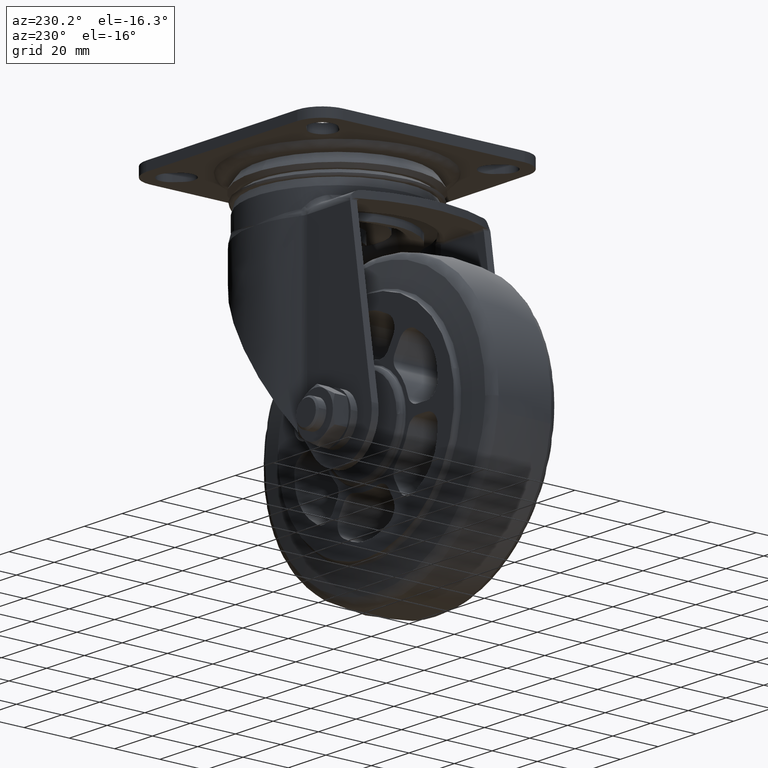
[diagram: clean part render]
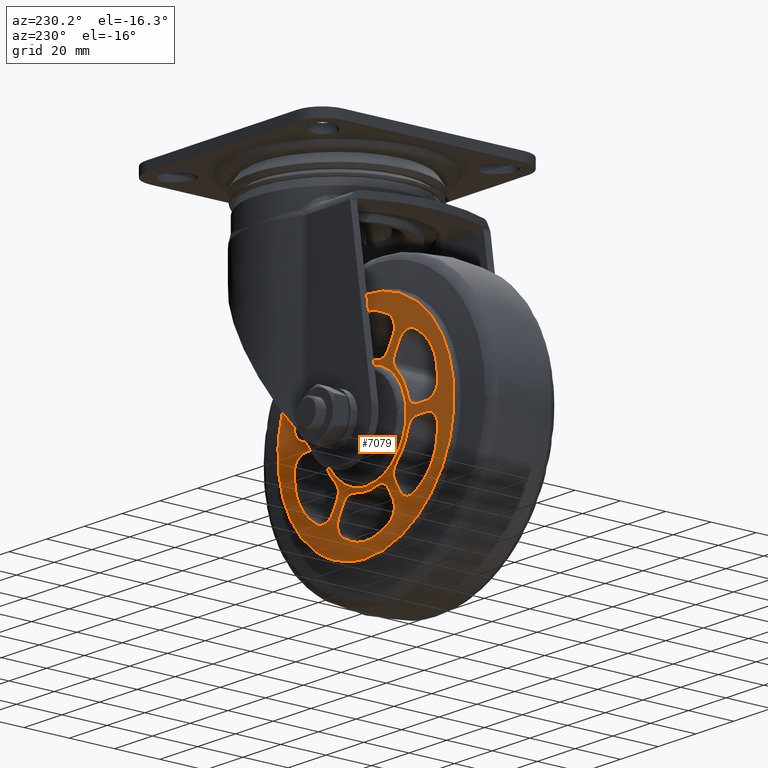
[diagram: same view with one face highlighted and labeled with its STEP entity id]
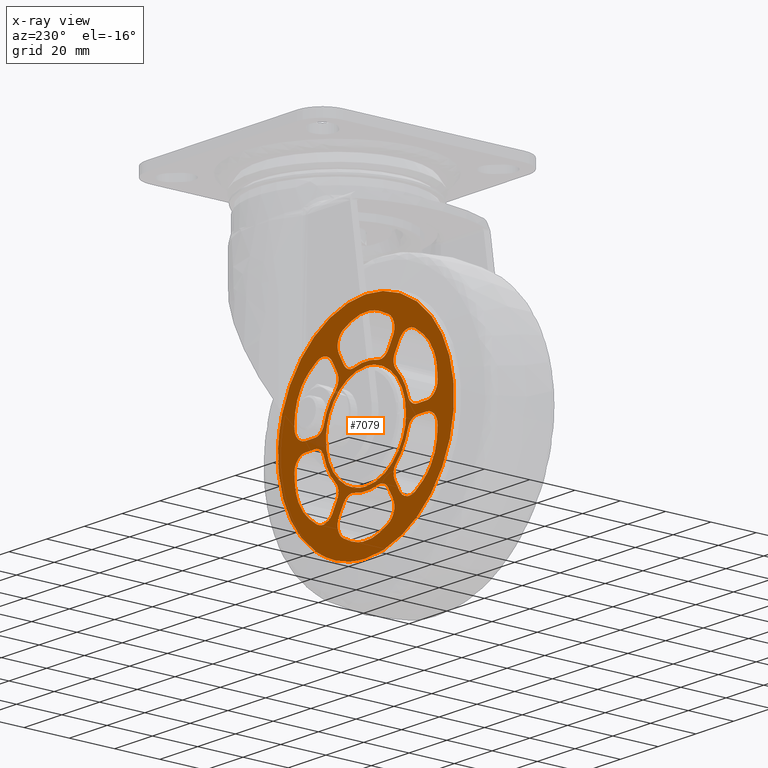
[diagram: x-ray of the same camera — body ghosted, the highlighted face saturated]
A machine part, auxiliary view. The second image highlights one B-rep face of the part: STEP entity #7079.
The next image is the same camera in x-ray: the body ghosted, the highlighted face saturated — about 2% of this face is hidden behind the body in this view.
In plain terms, the highlighted face is a freeform B-spline surface patch.
Its self-contained STEP definition (entity closure, byte-faithful):
#581=CARTESIAN_POINT('',(46.612899271979330,19.0,2.850914740496936));
#582=VERTEX_POINT('',#581);
#588=CARTESIAN_POINT('',(5.684342E-014,19.0,46.700000999999887));
#589=VERTEX_POINT('',#588);
#590=CARTESIAN_POINT('',(5.684342E-014,19.0,46.700000999999887));
#591=CARTESIAN_POINT('',(43.931023475244132,19.0,46.700000999999915));
#592=CARTESIAN_POINT('',(46.612899271979330,19.0,2.850914740496937));
#600=(BOUNDED_CURVE()B_SPLINE_CURVE(2,(#590,#591,#592),.UNSPECIFIED.,.F.,.U.)B_SPLINE_CURVE_WITH_KNOTS((3,3),(0.0,0.239333155162676),.UNSPECIFIED.)CURVE()GEOMETRIC_REPRESENTATION_ITEM()RATIONAL_B_SPLINE_CURVE((1.0,0.719603767262497,0.976072455139351))REPRESENTATION_ITEM(''));
#601=EDGE_CURVE('',#589,#582,#600,.T.);
#603=CARTESIAN_POINT('',(5.684342E-014,19.0,-46.700000999999887));
#604=VERTEX_POINT('',#603);
#605=CARTESIAN_POINT('',(5.684342E-014,19.0,-46.700000999999887));
#606=CARTESIAN_POINT('',(-46.700000999999858,18.999999999999993,-46.700000999999915));
#607=CARTESIAN_POINT('',(-46.700000999999837,19.0,0.0));
#608=CARTESIAN_POINT('',(-46.700000999999858,18.999999999999993,46.700000999999915));
#609=CARTESIAN_POINT('',(5.684342E-014,19.0,46.700000999999887));
#617=(BOUNDED_CURVE()B_SPLINE_CURVE(2,(#605,#606,#607,#608,#609),.UNSPECIFIED.,.F.,.U.)B_SPLINE_CURVE_WITH_KNOTS((3,2,3),(0.500000000000000,0.750000000000000,1.0),.UNSPECIFIED.)CURVE()GEOMETRIC_REPRESENTATION_ITEM()RATIONAL_B_SPLINE_CURVE((1.0,0.707106781186548,1.0,0.707106781186548,1.0))REPRESENTATION_ITEM(''));
#618=EDGE_CURVE('',#604,#589,#617,.T.);
#620=CARTESIAN_POINT('',(16.420526257996290,19.0,-43.717918646810837));
#621=VERTEX_POINT('',#620);
#622=CARTESIAN_POINT('',(16.420526257996297,19.000000000000011,-43.717918646810858));
#623=CARTESIAN_POINT('',(8.481046629523046,19.0,-46.700000999999894));
#624=CARTESIAN_POINT('',(5.684342E-014,19.0,-46.700000999999887));
#632=(BOUNDED_CURVE()B_SPLINE_CURVE(2,(#622,#623,#624),.UNSPECIFIED.,.F.,.U.)B_SPLINE_CURVE_WITH_KNOTS((3,3),(0.440284291923885,0.500000000000000),.UNSPECIFIED.)CURVE()GEOMETRIC_REPRESENTATION_ITEM()RATIONAL_B_SPLINE_CURVE((0.893499702741744,0.930038696191449,1.0))REPRESENTATION_ITEM(''));
#633=EDGE_CURVE('',#621,#604,#632,.T.);
#677=CARTESIAN_POINT('',(46.612899271979330,19.0,2.850914740496937));
#678=CARTESIAN_POINT('',(46.700000999999951,18.999999999999996,1.426787945119124));
#679=CARTESIAN_POINT('',(46.700000999999951,19.0,0.0));
#680=CARTESIAN_POINT('',(46.700000999999958,18.999999999999993,-32.344895285484000));
#681=CARTESIAN_POINT('',(16.420526257996297,19.000000000000011,-43.717918646810858));
#689=(BOUNDED_CURVE()B_SPLINE_CURVE(2,(#677,#678,#679,#680,#681),.UNSPECIFIED.,.F.,.U.)B_SPLINE_CURVE_WITH_KNOTS((3,2,3),(0.239333155162676,0.250000000000000,0.440284291923885),.UNSPECIFIED.)CURVE()GEOMETRIC_REPRESENTATION_ITEM()RATIONAL_B_SPLINE_CURVE((0.976072455139351,0.987503013924050,1.0,0.777068084995099,0.893499702741744))REPRESENTATION_ITEM(''));
#690=EDGE_CURVE('',#582,#621,#689,.T.);
#2684=CARTESIAN_POINT('',(21.198270542187220,19.0,1.481831594744568));
#2685=VERTEX_POINT('',#2684);
#2699=CARTESIAN_POINT('',(5.684342E-014,19.0,-21.250000000000000));
#2700=VERTEX_POINT('',#2699);
#2701=CARTESIAN_POINT('',(21.198270542187224,18.999999999999996,1.481831594744568));
#2702=CARTESIAN_POINT('',(21.250000000000060,19.000000000000004,0.741818712985195));
#2703=CARTESIAN_POINT('',(21.250000000000060,19.0,0.0));
#2704=CARTESIAN_POINT('',(21.250000000000064,18.999999999999996,-21.249999999999996));
#2705=CARTESIAN_POINT('',(5.684342E-014,19.0,-21.250000000000000));
#2713=(BOUNDED_CURVE()B_SPLINE_CURVE(2,(#2701,#2702,#2703,#2704,#2705),.UNSPECIFIED.,.F.,.U.)B_SPLINE_CURVE_WITH_KNOTS((3,2,3),(0.237833686524665,0.250000000000000,0.500000000000000),.UNSPECIFIED.)CURVE()GEOMETRIC_REPRESENTATION_ITEM()RATIONAL_B_SPLINE_CURVE((0.972879876364923,0.985746277140463,1.0,0.707106781186547,1.0))REPRESENTATION_ITEM(''));
#2714=EDGE_CURVE('',#2685,#2700,#2713,.T.);
#2716=CARTESIAN_POINT('',(-21.248322184327431,19.0,-0.267028347654822));
#2717=VERTEX_POINT('',#2716);
#2718=CARTESIAN_POINT('',(5.684342E-014,19.0,-21.250000000000000));
#2719=CARTESIAN_POINT('',(-20.984628510142315,19.0,-21.249999999999996));
#2720=CARTESIAN_POINT('',(-21.248322184327435,19.0,-0.267028347654822));
#2728=(BOUNDED_CURVE()B_SPLINE_CURVE(2,(#2718,#2719,#2720),.UNSPECIFIED.,.F.,.U.)B_SPLINE_CURVE_WITH_KNOTS((3,3),(0.500000000000000,0.747784295918476),.UNSPECIFIED.)CURVE()GEOMETRIC_REPRESENTATION_ITEM()RATIONAL_B_SPLINE_CURVE((1.0,0.709702639988050,0.994854295636527))REPRESENTATION_ITEM(''));
#2729=EDGE_CURVE('',#2700,#2717,#2728,.T.);
#2776=CARTESIAN_POINT('',(5.684342E-014,19.0,21.250000000000000));
#2777=VERTEX_POINT('',#2776);
#2778=CARTESIAN_POINT('',(-21.248322184327431,18.999999999999996,-0.267028347654822));
#2779=CARTESIAN_POINT('',(-21.249999999999947,18.999999999999996,-0.133519445024109));
#2780=CARTESIAN_POINT('',(-21.249999999999950,19.0,0.0));
#2781=CARTESIAN_POINT('',(-21.249999999999954,18.999999999999996,21.249999999999996));
#2782=CARTESIAN_POINT('',(5.684342E-014,19.0,21.250000000000000));
#2790=(BOUNDED_CURVE()B_SPLINE_CURVE(2,(#2778,#2779,#2780,#2781,#2782),.UNSPECIFIED.,.F.,.U.)B_SPLINE_CURVE_WITH_KNOTS((3,2,3),(0.747784295918477,0.750000000000000,1.0),.UNSPECIFIED.)CURVE()GEOMETRIC_REPRESENTATION_ITEM()RATIONAL_B_SPLINE_CURVE((0.994854295636529,0.997404141198498,1.0,0.707106781186547,1.0))REPRESENTATION_ITEM(''));
#2791=EDGE_CURVE('',#2717,#2777,#2790,.T.);
#2793=CARTESIAN_POINT('',(5.684342E-014,19.0,21.250000000000000));
#2794=CARTESIAN_POINT('',(19.816408003206483,18.999999999999996,21.249999999999993));
#2795=CARTESIAN_POINT('',(21.198270542187224,18.999999999999996,1.481831594744568));
#2803=(BOUNDED_CURVE()B_SPLINE_CURVE(2,(#2793,#2794,#2795),.UNSPECIFIED.,.F.,.U.)B_SPLINE_CURVE_WITH_KNOTS((3,3),(0.0,0.237833686524665),.UNSPECIFIED.)CURVE()GEOMETRIC_REPRESENTATION_ITEM()RATIONAL_B_SPLINE_CURVE((1.0,0.721360504046084,0.972879876364923))REPRESENTATION_ITEM(''));
#2804=EDGE_CURVE('',#2777,#2685,#2803,.T.);
#4004=CARTESIAN_POINT('',(-22.269653813184249,19.0,-5.750000015710111));
#4005=VERTEX_POINT('',#4004);
#4006=CARTESIAN_POINT('',(-27.110882999999848,19.0,-2.0));
#4007=VERTEX_POINT('',#4006);
#4008=CARTESIAN_POINT('',(-22.269653813184249,19.0,-5.750000015710111));
#4009=CARTESIAN_POINT('',(-23.237899640812163,19.0,-2.0));
#4010=CARTESIAN_POINT('',(-27.110882999999848,19.0,-2.0));
#4018=(BOUNDED_CURVE()B_SPLINE_CURVE(2,(#4008,#4009,#4010),.UNSPECIFIED.,.F.,.U.)CURVE()GEOMETRIC_REPRESENTATION_ITEM()QUASI_UNIFORM_CURVE()RATIONAL_B_SPLINE_CURVE((1.0,0.790569414048500,1.0))REPRESENTATION_ITEM(''));
#4019=EDGE_CURVE('',#4005,#4007,#4018,.T.);
#4056=CARTESIAN_POINT('',(-31.983204999999948,19.0,-2.0));
#4057=VERTEX_POINT('',#4056);
#4058=CARTESIAN_POINT('',(-31.983204999999948,19.0,-2.0));
#4059=CARTESIAN_POINT('',(-27.110882999999848,19.0,-2.0));
#4060=QUASI_UNIFORM_CURVE('',1,(#4058,#4059),.UNSPECIFIED.,.F.,.U.);
#4061=EDGE_CURVE('',#4057,#4007,#4060,.T.);
#4093=CARTESIAN_POINT('',(-37.979962896979799,19.0,-8.197234588049660));
#4094=VERTEX_POINT('',#4093);
#4095=CARTESIAN_POINT('',(-31.983204999999948,19.0,-2.0));
#4096=CARTESIAN_POINT('',(-34.526464151931883,19.0,-2.0));
#4097=CARTESIAN_POINT('',(-36.295014795041169,19.0,-3.827674953771385));
#4098=CARTESIAN_POINT('',(-38.063565438150462,19.0,-5.655349907542767));
#4099=CARTESIAN_POINT('',(-37.979962896979799,19.0,-8.197234588049660));
#4107=(BOUNDED_CURVE()B_SPLINE_CURVE(2,(#4095,#4096,#4097,#4098,#4099),.UNSPECIFIED.,.F.,.U.)B_SPLINE_CURVE_WITH_KNOTS((3,2,3),(0.0,0.500000000000000,1.0),.UNSPECIFIED.)CURVE()GEOMETRIC_REPRESENTATION_ITEM()RATIONAL_B_SPLINE_CURVE((1.0,0.920702858609869,1.0,0.920702858609869,1.0))REPRESENTATION_ITEM(''));
#4108=EDGE_CURVE('',#4057,#4094,#4107,.T.);
#4150=CARTESIAN_POINT('',(-37.552911390681103,19.0,-13.075622083258761));
#4151=VERTEX_POINT('',#4150);
#4152=CARTESIAN_POINT('',(-37.979962896979842,19.0,-8.197234588049676));
#4153=CARTESIAN_POINT('',(-37.899354442795897,19.0,-10.648063846935720));
#4154=CARTESIAN_POINT('',(-37.552911390681103,19.0,-13.075622083258761));
#4162=(BOUNDED_CURVE()B_SPLINE_CURVE(2,(#4152,#4153,#4154),.UNSPECIFIED.,.F.,.U.)CURVE()GEOMETRIC_REPRESENTATION_ITEM()QUASI_UNIFORM_CURVE()RATIONAL_B_SPLINE_CURVE((1.0,0.998518591757619,1.0))REPRESENTATION_ITEM(''));
#4163=EDGE_CURVE('',#4094,#4151,#4162,.T.);
#4203=CARTESIAN_POINT('',(-30.100276327109150,19.0,-25.983964036327901));
#4204=VERTEX_POINT('',#4203);
#4205=CARTESIAN_POINT('',(-37.552911390681089,19.0,-13.075622083258761));
#4206=CARTESIAN_POINT('',(-36.418277810399637,18.999999999999996,-21.026102559565054));
#4207=CARTESIAN_POINT('',(-30.100276327109150,19.0,-25.983964036327901));
#4215=(BOUNDED_CURVE()B_SPLINE_CURVE(2,(#4205,#4206,#4207),.UNSPECIFIED.,.F.,.U.)CURVE()GEOMETRIC_REPRESENTATION_ITEM()QUASI_UNIFORM_CURVE()RATIONAL_B_SPLINE_CURVE((1.0,0.927979302114498,1.0))REPRESENTATION_ITEM(''));
#4216=EDGE_CURVE('',#4151,#4204,#4215,.T.);
#4256=CARTESIAN_POINT('',(-26.088995190481249,19.0,-28.792994673231501));
#4257=VERTEX_POINT('',#4256);
#4258=CARTESIAN_POINT('',(-30.100276327109171,19.0,-25.983964036327929));
#4259=CARTESIAN_POINT('',(-28.171171099927378,19.0,-27.497771423771649));
#4260=CARTESIAN_POINT('',(-26.088995190481249,19.0,-28.792994673231501));
#4268=(BOUNDED_CURVE()B_SPLINE_CURVE(2,(#4258,#4259,#4260),.UNSPECIFIED.,.F.,.U.)CURVE()GEOMETRIC_REPRESENTATION_ITEM()QUASI_UNIFORM_CURVE()RATIONAL_B_SPLINE_CURVE((1.0,0.998518592248094,1.0))REPRESENTATION_ITEM(''));
#4269=EDGE_CURVE('',#4204,#4257,#4268,.T.);
#4309=CARTESIAN_POINT('',(-17.723654087481101,19.0,-26.698268151521798));
#4310=VERTEX_POINT('',#4309);
#4311=CARTESIAN_POINT('',(-26.088995190481249,19.0,-28.792994673231501));
#4312=CARTESIAN_POINT('',(-23.929460136711569,19.000000000000007,-30.136339584123721));
#4313=CARTESIAN_POINT('',(-21.462371816608350,19.0,-29.518567442561501));
#4314=CARTESIAN_POINT('',(-18.995283496505131,19.000000000000007,-28.900795300999281));
#4315=CARTESIAN_POINT('',(-17.723654087481101,19.0,-26.698268151521798));
#4323=(BOUNDED_CURVE()B_SPLINE_CURVE(2,(#4311,#4312,#4313,#4314,#4315),.UNSPECIFIED.,.F.,.U.)B_SPLINE_CURVE_WITH_KNOTS((3,2,3),(0.0,0.500000000000000,1.0),.UNSPECIFIED.)CURVE()GEOMETRIC_REPRESENTATION_ITEM()RATIONAL_B_SPLINE_CURVE((1.0,0.920702857697207,1.0,0.920702857697207,1.0))REPRESENTATION_ITEM(''));
#4324=EDGE_CURVE('',#4257,#4310,#4323,.T.);
#4357=CARTESIAN_POINT('',(-15.287492981077749,19.0,-22.478713999999901));
#4358=VERTEX_POINT('',#4357);
#4359=CARTESIAN_POINT('',(-15.287492981077749,19.0,-22.478713999999901));
#4360=CARTESIAN_POINT('',(-17.723654087481101,19.0,-26.698268151521798));
#4361=QUASI_UNIFORM_CURVE('',1,(#4359,#4360),.UNSPECIFIED.,.F.,.U.);
#4362=EDGE_CURVE('',#4358,#4310,#4361,.T.);
#4394=CARTESIAN_POINT('',(-16.114473665466999,19.0,-16.411086530819802));
#4395=VERTEX_POINT('',#4394);
#4396=CARTESIAN_POINT('',(-15.287492981077790,19.0,-22.478713999999879));
#4397=CARTESIAN_POINT('',(-13.351001301483965,18.999999999999996,-19.124612022508934));
#4398=CARTESIAN_POINT('',(-16.114473665467031,19.0,-16.411086530819830));
#4406=(BOUNDED_CURVE()B_SPLINE_CURVE(2,(#4396,#4397,#4398),.UNSPECIFIED.,.F.,.U.)CURVE()GEOMETRIC_REPRESENTATION_ITEM()QUASI_UNIFORM_CURVE()RATIONAL_B_SPLINE_CURVE((1.0,0.790569414048500,1.0))REPRESENTATION_ITEM(''));
#4407=EDGE_CURVE('',#4358,#4395,#4406,.T.);
#4447=CARTESIAN_POINT('',(-22.269653813184249,19.0,-5.750000015710111));
#4448=CARTESIAN_POINT('',(-20.672607460456735,19.000000000000004,-11.935335447328825));
#4449=CARTESIAN_POINT('',(-16.114473665466999,19.0,-16.411086530819802));
#4457=(BOUNDED_CURVE()B_SPLINE_CURVE(2,(#4447,#4448,#4449),.UNSPECIFIED.,.F.,.U.)CURVE()GEOMETRIC_REPRESENTATION_ITEM()QUASI_UNIFORM_CURVE()RATIONAL_B_SPLINE_CURVE((1.0,0.963525493321026,1.0))REPRESENTATION_ITEM(''));
#4458=EDGE_CURVE('',#4005,#4395,#4457,.T.);
#4483=CARTESIAN_POINT('',(14.259551422706700,19.0,-28.698267999999999));
#4484=VERTEX_POINT('',#4483);
#4485=CARTESIAN_POINT('',(11.823391000000059,19.0,-24.478714000000000));
#4486=VERTEX_POINT('',#4485);
#4487=CARTESIAN_POINT('',(14.259551422706700,19.0,-28.698267999999999));
#4488=CARTESIAN_POINT('',(11.823391000000059,19.0,-24.478714000000000));
#4489=QUASI_UNIFORM_CURVE('',1,(#4487,#4488),.UNSPECIFIED.,.F.,.U.);
#4490=EDGE_CURVE('',#4484,#4486,#4489,.T.);
#4528=CARTESIAN_POINT('',(11.890967968369839,19.0,-36.990229637287150));
#4529=VERTEX_POINT('',#4528);
#4530=CARTESIAN_POINT('',(11.890967968369839,19.0,-36.990229637287150));
#4531=CARTESIAN_POINT('',(14.134105897311770,18.999999999999996,-35.791689331238253));
#4532=CARTESIAN_POINT('',(14.832643424380549,19.0,-33.346242141712757));
#4533=CARTESIAN_POINT('',(15.531180951449338,18.999999999999996,-30.900794952187265));
#4534=CARTESIAN_POINT('',(14.259551422706650,19.0,-28.698268000000031));
#4542=(BOUNDED_CURVE()B_SPLINE_CURVE(2,(#4530,#4531,#4532,#4533,#4534),.UNSPECIFIED.,.F.,.U.)B_SPLINE_CURVE_WITH_KNOTS((3,2,3),(0.0,0.500000000000000,1.0),.UNSPECIFIED.)CURVE()GEOMETRIC_REPRESENTATION_ITEM()RATIONAL_B_SPLINE_CURVE((1.0,0.920702863817409,1.0,0.920702863817409,1.0))REPRESENTATION_ITEM(''));
#4543=EDGE_CURVE('',#4529,#4484,#4542,.T.);
#4585=CARTESIAN_POINT('',(7.452634689744221,19.0,-39.059586099404846));
#4586=VERTEX_POINT('',#4585);
#4587=CARTESIAN_POINT('',(7.452634689744221,19.0,-39.059586099404846));
#4588=CARTESIAN_POINT('',(9.728183304794781,19.000000000000004,-38.145835317923968));
#4589=CARTESIAN_POINT('',(11.890967968369830,19.0,-36.990229637287143));
#4597=(BOUNDED_CURVE()B_SPLINE_CURVE(2,(#4587,#4588,#4589),.UNSPECIFIED.,.F.,.U.)CURVE()GEOMETRIC_REPRESENTATION_ITEM()QUASI_UNIFORM_CURVE()RATIONAL_B_SPLINE_CURVE((1.0,0.998518591705747,1.0))REPRESENTATION_ITEM(''));
#4598=EDGE_CURVE('',#4586,#4529,#4597,.T.);
#4638=CARTESIAN_POINT('',(-7.452635051924220,19.0,-39.059585723660952));
#4639=VERTEX_POINT('',#4638);
#4640=CARTESIAN_POINT('',(-7.452635051924220,19.0,-39.059585723660952));
#4641=CARTESIAN_POINT('',(-0.000000256530320,19.000000000000007,-42.052204869733274));
#4642=CARTESIAN_POINT('',(7.452634689744216,19.0,-39.059586099404861));
#4650=(BOUNDED_CURVE()B_SPLINE_CURVE(2,(#4640,#4641,#4642),.UNSPECIFIED.,.F.,.U.)CURVE()GEOMETRIC_REPRESENTATION_ITEM()QUASI_UNIFORM_CURVE()RATIONAL_B_SPLINE_CURVE((1.0,0.927979300534903,1.0))REPRESENTATION_ITEM(''));
#4651=EDGE_CURVE('',#4639,#4586,#4650,.T.);
#4691=CARTESIAN_POINT('',(-11.890967129116101,19.0,-36.990229684971553));
#4692=VERTEX_POINT('',#4691);
#4693=CARTESIAN_POINT('',(-11.890967129116101,19.0,-36.990229684971553));
#4694=CARTESIAN_POINT('',(-9.728183160450769,19.000000000000004,-38.145835347927559));
#4695=CARTESIAN_POINT('',(-7.452635051924207,19.0,-39.059585723660923));
#4703=(BOUNDED_CURVE()B_SPLINE_CURVE(2,(#4693,#4694,#4695),.UNSPECIFIED.,.F.,.U.)CURVE()GEOMETRIC_REPRESENTATION_ITEM()QUASI_UNIFORM_CURVE()RATIONAL_B_SPLINE_CURVE((1.0,0.998518592454691,1.0))REPRESENTATION_ITEM(''));
#4704=EDGE_CURVE('',#4692,#4639,#4703,.T.);
#4744=CARTESIAN_POINT('',(-14.259551999999919,19.0,-28.698267999999999));
#4745=VERTEX_POINT('',#4744);
#4746=CARTESIAN_POINT('',(-14.259551999999919,19.0,-28.698267999999999));
#4747=CARTESIAN_POINT('',(-15.531181059715630,19.000000000000004,-30.900795384411023));
#4748=CARTESIAN_POINT('',(-14.832643279999481,19.0,-33.346242647163372));
#4749=CARTESIAN_POINT('',(-14.134105500283333,19.000000000000004,-35.791689909915718));
#4750=CARTESIAN_POINT('',(-11.890967129116101,19.0,-36.990229684971553));
#4758=(BOUNDED_CURVE()B_SPLINE_CURVE(2,(#4746,#4747,#4748,#4749,#4750),.UNSPECIFIED.,.F.,.U.)B_SPLINE_CURVE_WITH_KNOTS((3,2,3),(0.0,0.500000000000000,1.0),.UNSPECIFIED.)CURVE()GEOMETRIC_REPRESENTATION_ITEM()RATIONAL_B_SPLINE_CURVE((1.0,0.920702856109011,1.0,0.920702856109011,1.0))REPRESENTATION_ITEM(''));
#4759=EDGE_CURVE('',#4745,#4692,#4758,.T.);
#4792=CARTESIAN_POINT('',(-11.823391018922139,19.0,-24.478713999999901));
#4793=VERTEX_POINT('',#4792);
#4794=CARTESIAN_POINT('',(-11.823391018922139,19.0,-24.478713999999901));
#4795=CARTESIAN_POINT('',(-14.259551999999919,19.0,-28.698267999999999));
#4796=QUASI_UNIFORM_CURVE('',1,(#4794,#4795),.UNSPECIFIED.,.F.,.U.);
#4797=EDGE_CURVE('',#4793,#4745,#4796,.T.);
#4829=CARTESIAN_POINT('',(-6.155181120500460,19.0,-22.161086285961549));
#4830=VERTEX_POINT('',#4829);
#4831=CARTESIAN_POINT('',(-6.155181120500460,19.0,-22.161086285961549));
#4832=CARTESIAN_POINT('',(-9.886899356731618,19.000000000000007,-21.124612052652363));
#4833=CARTESIAN_POINT('',(-11.823391018922180,19.0,-24.478713999999879));
#4841=(BOUNDED_CURVE()B_SPLINE_CURVE(2,(#4831,#4832,#4833),.UNSPECIFIED.,.F.,.U.)CURVE()GEOMETRIC_REPRESENTATION_ITEM()QUASI_UNIFORM_CURVE()RATIONAL_B_SPLINE_CURVE((1.0,0.790569416712825,1.0))REPRESENTATION_ITEM(''));
#4842=EDGE_CURVE('',#4830,#4793,#4841,.T.);
#4882=CARTESIAN_POINT('',(6.155181120500490,19.0,-22.161086285961598));
#4883=VERTEX_POINT('',#4882);
#4884=CARTESIAN_POINT('',(-6.155181120500468,19.0,-22.161086285961570));
#4885=CARTESIAN_POINT('',(9.138523E-015,18.999999999999996,-23.870671011966888));
#4886=CARTESIAN_POINT('',(6.155181120500489,19.0,-22.161086285961598));
#4894=(BOUNDED_CURVE()B_SPLINE_CURVE(2,(#4884,#4885,#4886),.UNSPECIFIED.,.F.,.U.)CURVE()GEOMETRIC_REPRESENTATION_ITEM()QUASI_UNIFORM_CURVE()RATIONAL_B_SPLINE_CURVE((1.0,0.963525490693982,1.0))REPRESENTATION_ITEM(''));
#4895=EDGE_CURVE('',#4830,#4883,#4894,.T.);
#4935=CARTESIAN_POINT('',(11.823391000000059,19.0,-24.478714000000000));
#4936=CARTESIAN_POINT('',(9.886899349438931,19.000000000000004,-21.124612054677897));
#4937=CARTESIAN_POINT('',(6.155181120500490,19.0,-22.161086285961598));
#4945=(BOUNDED_CURVE()B_SPLINE_CURVE(2,(#4935,#4936,#4937),.UNSPECIFIED.,.F.,.U.)CURVE()GEOMETRIC_REPRESENTATION_ITEM()QUASI_UNIFORM_CURVE()RATIONAL_B_SPLINE_CURVE((1.0,0.790569417292189,1.0))REPRESENTATION_ITEM(''));
#4946=EDGE_CURVE('',#4486,#4883,#4945,.T.);
#4971=CARTESIAN_POINT('',(27.110883000000051,19.0,-1.999999999999945));
#4972=VERTEX_POINT('',#4971);
#4973=CARTESIAN_POINT('',(31.983205000000051,19.0,-1.999999999999945));
#4974=VERTEX_POINT('',#4973);
#4975=CARTESIAN_POINT('',(27.110883000000051,19.0,-1.999999999999945));
#4976=CARTESIAN_POINT('',(31.983205000000051,19.0,-1.999999999999945));
#4977=QUASI_UNIFORM_CURVE('',1,(#4975,#4976),.UNSPECIFIED.,.F.,.U.);
#4978=EDGE_CURVE('',#4972,#4974,#4977,.T.);
#5016=CARTESIAN_POINT('',(37.979962317359814,19.0,-8.197235079771060));
#5017=VERTEX_POINT('',#5016);
#5018=CARTESIAN_POINT('',(37.979962317359799,19.0,-8.197235079771064));
#5019=CARTESIAN_POINT('',(38.063565642593993,19.000000000000004,-5.655350274412518));
#5020=CARTESIAN_POINT('',(36.295014972542120,19.0,-3.827675137206259));
#5021=CARTESIAN_POINT('',(34.526464302490233,19.000000000000004,-2.000000000000000));
#5022=CARTESIAN_POINT('',(31.983205000000051,19.0,-2.0));
#5030=(BOUNDED_CURVE()B_SPLINE_CURVE(2,(#5018,#5019,#5020,#5021,#5022),.UNSPECIFIED.,.F.,.U.)B_SPLINE_CURVE_WITH_KNOTS((3,2,3),(0.0,0.500000000000000,1.0),.UNSPECIFIED.)CURVE()GEOMETRIC_REPRESENTATION_ITEM()RATIONAL_B_SPLINE_CURVE((1.0,0.920702850308472,1.0,0.920702850308472,1.0))REPRESENTATION_ITEM(''));
#5031=EDGE_CURVE('',#5017,#4974,#5030,.T.);
#5073=CARTESIAN_POINT('',(37.552911279774897,19.0,-13.075622382842241));
#5074=VERTEX_POINT('',#5073);
#5075=CARTESIAN_POINT('',(37.552911279774897,19.0,-13.075622382842250));
#5076=CARTESIAN_POINT('',(37.899354401478881,19.0,-10.648064256883123));
#5077=CARTESIAN_POINT('',(37.979962317359814,19.0,-8.197235079771060));
#5085=(BOUNDED_CURVE()B_SPLINE_CURVE(2,(#5075,#5076,#5077),.UNSPECIFIED.,.F.,.U.)CURVE()GEOMETRIC_REPRESENTATION_ITEM()QUASI_UNIFORM_CURVE()RATIONAL_B_SPLINE_CURVE((1.0,0.998518591877483,1.0))REPRESENTATION_ITEM(''));
#5086=EDGE_CURVE('',#5074,#5017,#5085,.T.);
#5126=CARTESIAN_POINT('',(30.100276893866951,19.0,-25.983963864750152));
#5127=VERTEX_POINT('',#5126);
#5128=CARTESIAN_POINT('',(30.100276893866980,19.0,-25.983963864750191));
#5129=CARTESIAN_POINT('',(36.418277713037035,18.999999999999996,-21.026102354320059));
#5130=CARTESIAN_POINT('',(37.552911279774897,19.0,-13.075622382842241));
#5138=(BOUNDED_CURVE()B_SPLINE_CURVE(2,(#5128,#5129,#5130),.UNSPECIFIED.,.F.,.U.)CURVE()GEOMETRIC_REPRESENTATION_ITEM()QUASI_UNIFORM_CURVE()RATIONAL_B_SPLINE_CURVE((1.0,0.927979310163679,1.0))REPRESENTATION_ITEM(''));
#5139=EDGE_CURVE('',#5127,#5074,#5138,.T.);
#5179=CARTESIAN_POINT('',(26.088995341053050,19.0,-28.792994792674701));
#5180=VERTEX_POINT('',#5179);
#5181=CARTESIAN_POINT('',(26.088995341053089,19.0,-28.792994792674769));
#5182=CARTESIAN_POINT('',(28.171171360441285,19.000000000000007,-27.497771257562110));
#5183=CARTESIAN_POINT('',(30.100276893866951,19.0,-25.983963864750152));
#5191=(BOUNDED_CURVE()B_SPLINE_CURVE(2,(#5181,#5182,#5183),.UNSPECIFIED.,.F.,.U.)CURVE()GEOMETRIC_REPRESENTATION_ITEM()QUASI_UNIFORM_CURVE()RATIONAL_B_SPLINE_CURVE((1.0,0.998518591953652,1.0))REPRESENTATION_ITEM(''));
#5192=EDGE_CURVE('',#5180,#5127,#5191,.T.);
#5232=CARTESIAN_POINT('',(17.723653770451151,19.0,-26.698268334559000));
#5233=VERTEX_POINT('',#5232);
#5234=CARTESIAN_POINT('',(17.723653770451161,19.0,-26.698268334559000));
#5235=CARTESIAN_POINT('',(18.995283506055120,19.000000000000004,-28.900795317540318));
#5236=CARTESIAN_POINT('',(21.462371848020481,19.0,-29.518567450427241));
#5237=CARTESIAN_POINT('',(23.929460189985836,19.000000000000004,-30.136339583314157));
#5238=CARTESIAN_POINT('',(26.088995341053050,19.0,-28.792994792674701));
#5246=(BOUNDED_CURVE()B_SPLINE_CURVE(2,(#5234,#5235,#5236,#5237,#5238),.UNSPECIFIED.,.F.,.U.)B_SPLINE_CURVE_WITH_KNOTS((3,2,3),(0.0,0.500000000000000,1.0),.UNSPECIFIED.)CURVE()GEOMETRIC_REPRESENTATION_ITEM()RATIONAL_B_SPLINE_CURVE((1.0,0.920702856644077,1.0,0.920702856644077,1.0))REPRESENTATION_ITEM(''));
#5247=EDGE_CURVE('',#5233,#5180,#5246,.T.);
#5280=CARTESIAN_POINT('',(15.287493156234349,19.0,-22.478714270605550));
#5281=VERTEX_POINT('',#5280);
#5282=CARTESIAN_POINT('',(17.723653770451151,19.0,-26.698268334559000));
#5283=CARTESIAN_POINT('',(15.287493156234349,19.0,-22.478714270605550));
#5284=QUASI_UNIFORM_CURVE('',1,(#5282,#5283),.UNSPECIFIED.,.F.,.U.);
#5285=EDGE_CURVE('',#5233,#5281,#5284,.T.);
#5317=CARTESIAN_POINT('',(16.114473632997850,19.0,-16.411086562702351));
#5318=VERTEX_POINT('',#5317);
#5319=CARTESIAN_POINT('',(16.114473632997850,19.0,-16.411086562702351));
#5320=CARTESIAN_POINT('',(13.351001135922111,19.0,-19.124612234478700));
#5321=CARTESIAN_POINT('',(15.287493156234349,19.0,-22.478714270605550));
#5329=(BOUNDED_CURVE()B_SPLINE_CURVE(2,(#5319,#5320,#5321),.UNSPECIFIED.,.F.,.U.)CURVE()GEOMETRIC_REPRESENTATION_ITEM()QUASI_UNIFORM_CURVE()RATIONAL_B_SPLINE_CURVE((1.0,0.790569397121040,1.0))REPRESENTATION_ITEM(''));
#5330=EDGE_CURVE('',#5318,#5281,#5329,.T.);
#5370=CARTESIAN_POINT('',(22.269654218953001,19.0,-5.750000084197589));
#5371=VERTEX_POINT('',#5370);
#5372=CARTESIAN_POINT('',(16.114473632997850,19.0,-16.411086562702351));
#5373=CARTESIAN_POINT('',(20.672607467829568,19.000000000000004,-11.935335457802850));
#5374=CARTESIAN_POINT('',(22.269654218952979,19.0,-5.750000084197584));
#5382=(BOUNDED_CURVE()B_SPLINE_CURVE(2,(#5372,#5373,#5374),.UNSPECIFIED.,.F.,.U.)CURVE()GEOMETRIC_REPRESENTATION_ITEM()QUASI_UNIFORM_CURVE()RATIONAL_B_SPLINE_CURVE((1.0,0.963525492851912,1.0))REPRESENTATION_ITEM(''));
#5383=EDGE_CURVE('',#5318,#5371,#5382,.T.);
#5423=CARTESIAN_POINT('',(27.110883000000051,19.0,-2.0));
#5424=CARTESIAN_POINT('',(23.237899668915905,19.000000000000004,-2.000000000000000));
#5425=CARTESIAN_POINT('',(22.269654218953001,19.0,-5.750000084197589));
#5433=(BOUNDED_CURVE()B_SPLINE_CURVE(2,(#5423,#5424,#5425),.UNSPECIFIED.,.F.,.U.)CURVE()GEOMETRIC_REPRESENTATION_ITEM()QUASI_UNIFORM_CURVE()RATIONAL_B_SPLINE_CURVE((1.0,0.790569416199729,1.0))REPRESENTATION_ITEM(''));
#5434=EDGE_CURVE('',#4972,#5371,#5433,.T.);
#5459=CARTESIAN_POINT('',(17.723653770451151,19.0,26.698268334559000));
#5460=VERTEX_POINT('',#5459);
#5461=CARTESIAN_POINT('',(15.287493156234349,19.0,22.478714270605501));
#5462=VERTEX_POINT('',#5461);
#5463=CARTESIAN_POINT('',(17.723653770451151,19.0,26.698268334559000));
#5464=CARTESIAN_POINT('',(15.287493156234349,19.0,22.478714270605501));
#5465=QUASI_UNIFORM_CURVE('',1,(#5463,#5464),.UNSPECIFIED.,.F.,.U.);
#5466=EDGE_CURVE('',#5460,#5462,#5465,.T.);
#5504=CARTESIAN_POINT('',(26.088995341053050,19.0,28.792994792674701));
#5505=VERTEX_POINT('',#5504);
#5506=CARTESIAN_POINT('',(26.088995341053050,19.0,28.792994792674701));
#5507=CARTESIAN_POINT('',(23.929460189985839,19.000000000000007,30.136339583314147));
#5508=CARTESIAN_POINT('',(21.462371848020481,19.0,29.518567450427241));
#5509=CARTESIAN_POINT('',(18.995283506055124,19.000000000000007,28.900795317540322));
#5510=CARTESIAN_POINT('',(17.723653770451161,19.0,26.698268334559000));
#5518=(BOUNDED_CURVE()B_SPLINE_CURVE(2,(#5506,#5507,#5508,#5509,#5510),.UNSPECIFIED.,.F.,.U.)B_SPLINE_CURVE_WITH_KNOTS((3,2,3),(0.0,0.500000000000000,1.0),.UNSPECIFIED.)CURVE()GEOMETRIC_REPRESENTATION_ITEM()RATIONAL_B_SPLINE_CURVE((1.0,0.920702856644077,1.0,0.920702856644077,1.0))REPRESENTATION_ITEM(''));
#5519=EDGE_CURVE('',#5505,#5460,#5518,.T.);
#5561=CARTESIAN_POINT('',(30.100276893866951,19.0,25.983963864750152));
#5562=VERTEX_POINT('',#5561);
#5563=CARTESIAN_POINT('',(30.100276893866951,19.0,25.983963864750152));
#5564=CARTESIAN_POINT('',(28.171171360441345,19.000000000000004,27.497771257562079));
#5565=CARTESIAN_POINT('',(26.088995341053050,19.0,28.792994792674701));
#5573=(BOUNDED_CURVE()B_SPLINE_CURVE(2,(#5563,#5564,#5565),.UNSPECIFIED.,.F.,.U.)CURVE()GEOMETRIC_REPRESENTATION_ITEM()QUASI_UNIFORM_CURVE()RATIONAL_B_SPLINE_CURVE((1.0,0.998518591953652,1.0))REPRESENTATION_ITEM(''));
#5574=EDGE_CURVE('',#5562,#5505,#5573,.T.);
#5614=CARTESIAN_POINT('',(37.552911279774897,19.0,13.075622382842241));
#5615=VERTEX_POINT('',#5614);
#5616=CARTESIAN_POINT('',(37.552911279774897,19.0,13.075622382842241));
#5617=CARTESIAN_POINT('',(36.418277713037050,19.000000000000004,21.026102354320059));
#5618=CARTESIAN_POINT('',(30.100276893866990,19.0,25.983963864750191));
#5626=(BOUNDED_CURVE()B_SPLINE_CURVE(2,(#5616,#5617,#5618),.UNSPECIFIED.,.F.,.U.)CURVE()GEOMETRIC_REPRESENTATION_ITEM()QUASI_UNIFORM_CURVE()RATIONAL_B_SPLINE_CURVE((1.0,0.927979310163679,1.0))REPRESENTATION_ITEM(''));
#5627=EDGE_CURVE('',#5615,#5562,#5626,.T.);
#5667=CARTESIAN_POINT('',(37.979962317359814,19.0,8.197235079771060));
#5668=VERTEX_POINT('',#5667);
#5669=CARTESIAN_POINT('',(37.979962317359814,19.0,8.197235079771060));
#5670=CARTESIAN_POINT('',(37.899354401478881,18.999999999999996,10.648064256883092));
#5671=CARTESIAN_POINT('',(37.552911279774897,19.0,13.075622382842230));
#5679=(BOUNDED_CURVE()B_SPLINE_CURVE(2,(#5669,#5670,#5671),.UNSPECIFIED.,.F.,.U.)CURVE()GEOMETRIC_REPRESENTATION_ITEM()QUASI_UNIFORM_CURVE()RATIONAL_B_SPLINE_CURVE((1.0,0.998518591877483,1.0))REPRESENTATION_ITEM(''));
#5680=EDGE_CURVE('',#5668,#5615,#5679,.T.);
#5720=CARTESIAN_POINT('',(31.983205000000051,19.0,1.999999999999945));
#5721=VERTEX_POINT('',#5720);
#5722=CARTESIAN_POINT('',(31.983205000000051,19.0,2.0));
#5723=CARTESIAN_POINT('',(34.526464302490240,19.0,2.000000000000000));
#5724=CARTESIAN_POINT('',(36.295014972542113,19.0,3.827675137206259));
#5725=CARTESIAN_POINT('',(38.063565642593986,19.0,5.655350274412516));
#5726=CARTESIAN_POINT('',(37.979962317359799,19.0,8.197235079771062));
#5734=(BOUNDED_CURVE()B_SPLINE_CURVE(2,(#5722,#5723,#5724,#5725,#5726),.UNSPECIFIED.,.F.,.U.)B_SPLINE_CURVE_WITH_KNOTS((3,2,3),(0.0,0.500000000000000,1.0),.UNSPECIFIED.)CURVE()GEOMETRIC_REPRESENTATION_ITEM()RATIONAL_B_SPLINE_CURVE((1.0,0.920702850308472,1.0,0.920702850308472,1.0))REPRESENTATION_ITEM(''));
#5735=EDGE_CURVE('',#5721,#5668,#5734,.T.);
#5768=CARTESIAN_POINT('',(27.110883000000051,19.0,2.0));
#5769=VERTEX_POINT('',#5768);
#5770=CARTESIAN_POINT('',(27.110883000000051,19.0,2.0));
#5771=CARTESIAN_POINT('',(31.983205000000051,19.0,1.999999999999945));
#5772=QUASI_UNIFORM_CURVE('',1,(#5770,#5771),.UNSPECIFIED.,.F.,.U.);
#5773=EDGE_CURVE('',#5769,#5721,#5772,.T.);
#5805=CARTESIAN_POINT('',(22.269654218953001,19.0,5.750000084197580));
#5806=VERTEX_POINT('',#5805);
#5807=CARTESIAN_POINT('',(22.269654218953001,19.0,5.750000084197580));
#5808=CARTESIAN_POINT('',(23.237899668915915,19.000000000000004,2.000000000000000));
#5809=CARTESIAN_POINT('',(27.110883000000051,19.0,2.0));
#5817=(BOUNDED_CURVE()B_SPLINE_CURVE(2,(#5807,#5808,#5809),.UNSPECIFIED.,.F.,.U.)CURVE()GEOMETRIC_REPRESENTATION_ITEM()QUASI_UNIFORM_CURVE()RATIONAL_B_SPLINE_CURVE((1.0,0.790569416199730,1.0))REPRESENTATION_ITEM(''));
#5818=EDGE_CURVE('',#5806,#5769,#5817,.T.);
#5858=CARTESIAN_POINT('',(16.114473288210700,19.0,16.411086211568851));
#5859=VERTEX_POINT('',#5858);
#5860=CARTESIAN_POINT('',(22.269654218952979,19.0,5.750000084197575));
#5861=CARTESIAN_POINT('',(20.672607467829561,18.999999999999996,11.935335457802850));
#5862=CARTESIAN_POINT('',(16.114473288210721,19.0,16.411086211568851));
#5870=(BOUNDED_CURVE()B_SPLINE_CURVE(2,(#5860,#5861,#5862),.UNSPECIFIED.,.F.,.U.)CURVE()GEOMETRIC_REPRESENTATION_ITEM()QUASI_UNIFORM_CURVE()RATIONAL_B_SPLINE_CURVE((1.0,0.963525492851912,1.0))REPRESENTATION_ITEM(''));
#5871=EDGE_CURVE('',#5806,#5859,#5870,.T.);
#5911=CARTESIAN_POINT('',(15.287493156234349,19.0,22.478714270605501));
#5912=CARTESIAN_POINT('',(13.351001135922136,19.000000000000007,19.124612234478679));
#5913=CARTESIAN_POINT('',(16.114473288210700,19.0,16.411086211568851));
#5921=(BOUNDED_CURVE()B_SPLINE_CURVE(2,(#5911,#5912,#5913),.UNSPECIFIED.,.F.,.U.)CURVE()GEOMETRIC_REPRESENTATION_ITEM()QUASI_UNIFORM_CURVE()RATIONAL_B_SPLINE_CURVE((1.0,0.790569397121043,1.0))REPRESENTATION_ITEM(''));
#5922=EDGE_CURVE('',#5462,#5859,#5921,.T.);
#5956=CARTESIAN_POINT('',(6.155181147717360,19.0,22.161086546530001));
#5957=VERTEX_POINT('',#5956);
#5958=CARTESIAN_POINT('',(11.823391018922260,19.0,24.478713999999901));
#5959=VERTEX_POINT('',#5958);
#5960=CARTESIAN_POINT('',(6.155181147717352,19.0,22.161086546529969));
#5961=CARTESIAN_POINT('',(9.886899339328362,19.000000000000007,21.124612022508941));
#5962=CARTESIAN_POINT('',(11.823391018922260,19.0,24.478713999999901));
#5970=(BOUNDED_CURVE()B_SPLINE_CURVE(2,(#5960,#5961,#5962),.UNSPECIFIED.,.F.,.U.)CURVE()GEOMETRIC_REPRESENTATION_ITEM()QUASI_UNIFORM_CURVE()RATIONAL_B_SPLINE_CURVE((1.0,0.790569414048496,1.0))REPRESENTATION_ITEM(''));
#5971=EDGE_CURVE('',#5957,#5959,#5970,.T.);
#6008=CARTESIAN_POINT('',(14.259552000000159,19.0,28.698267999999999));
#6009=VERTEX_POINT('',#6008);
#6010=CARTESIAN_POINT('',(11.823391018922260,19.0,24.478713999999901));
#6011=CARTESIAN_POINT('',(14.259552000000159,19.0,28.698267999999999));
#6012=QUASI_UNIFORM_CURVE('',1,(#6010,#6011),.UNSPECIFIED.,.F.,.U.);
#6013=EDGE_CURVE('',#5959,#6009,#6012,.T.);
#6045=CARTESIAN_POINT('',(11.890967129116021,19.0,36.990229684971652));
#6046=VERTEX_POINT('',#6045);
#6047=CARTESIAN_POINT('',(14.259552000000159,19.0,28.698267999999999));
#6048=CARTESIAN_POINT('',(15.531181059715646,18.999999999999996,30.900795384411161));
#6049=CARTESIAN_POINT('',(14.832643279999450,19.0,33.346242647163479));
#6050=CARTESIAN_POINT('',(14.134105500283262,18.999999999999996,35.791689909915817));
#6051=CARTESIAN_POINT('',(11.890967129116000,19.0,36.990229684971602));
#6059=(BOUNDED_CURVE()B_SPLINE_CURVE(2,(#6047,#6048,#6049,#6050,#6051),.UNSPECIFIED.,.F.,.U.)B_SPLINE_CURVE_WITH_KNOTS((3,2,3),(0.0,0.500000000000000,1.0),.UNSPECIFIED.)CURVE()GEOMETRIC_REPRESENTATION_ITEM()RATIONAL_B_SPLINE_CURVE((1.0,0.920702856109012,1.0,0.920702856109012,1.0))REPRESENTATION_ITEM(''));
#6060=EDGE_CURVE('',#6009,#6046,#6059,.T.);
#6102=CARTESIAN_POINT('',(7.452635051924490,19.0,39.059585723660952));
#6103=VERTEX_POINT('',#6102);
#6104=CARTESIAN_POINT('',(11.890967129116021,19.0,36.990229684971652));
#6105=CARTESIAN_POINT('',(9.728183160450922,19.000000000000004,38.145835347927623));
#6106=CARTESIAN_POINT('',(7.452635051924502,19.0,39.059585723660923));
#6114=(BOUNDED_CURVE()B_SPLINE_CURVE(2,(#6104,#6105,#6106),.UNSPECIFIED.,.F.,.U.)CURVE()GEOMETRIC_REPRESENTATION_ITEM()QUASI_UNIFORM_CURVE()RATIONAL_B_SPLINE_CURVE((1.0,0.998518592454691,1.0))REPRESENTATION_ITEM(''));
#6115=EDGE_CURVE('',#6046,#6103,#6114,.T.);
#6155=CARTESIAN_POINT('',(-7.452634689744100,19.0,39.059586099404846));
#6156=VERTEX_POINT('',#6155);
#6157=CARTESIAN_POINT('',(7.452635051924490,19.0,39.059585723660952));
#6158=CARTESIAN_POINT('',(0.000000256530518,19.000000000000007,42.052204869733295));
#6159=CARTESIAN_POINT('',(-7.452634689744099,19.0,39.059586099404861));
#6167=(BOUNDED_CURVE()B_SPLINE_CURVE(2,(#6157,#6158,#6159),.UNSPECIFIED.,.F.,.U.)CURVE()GEOMETRIC_REPRESENTATION_ITEM()QUASI_UNIFORM_CURVE()RATIONAL_B_SPLINE_CURVE((1.0,0.927979300534901,1.0))REPRESENTATION_ITEM(''));
#6168=EDGE_CURVE('',#6103,#6156,#6167,.T.);
#6208=CARTESIAN_POINT('',(-11.890967968370861,19.0,36.990229637286447));
#6209=VERTEX_POINT('',#6208);
#6210=CARTESIAN_POINT('',(-7.452634689744100,19.0,39.059586099404846));
#6211=CARTESIAN_POINT('',(-9.728183304795284,18.999999999999996,38.145835317923634));
#6212=CARTESIAN_POINT('',(-11.890967968370870,19.0,36.990229637286440));
#6220=(BOUNDED_CURVE()B_SPLINE_CURVE(2,(#6210,#6211,#6212),.UNSPECIFIED.,.F.,.U.)CURVE()GEOMETRIC_REPRESENTATION_ITEM()QUASI_UNIFORM_CURVE()RATIONAL_B_SPLINE_CURVE((1.0,0.998518591705746,1.0))REPRESENTATION_ITEM(''));
#6221=EDGE_CURVE('',#6156,#6209,#6220,.T.);
#6261=CARTESIAN_POINT('',(-14.259551422706579,19.0,28.698267999999999));
#6262=VERTEX_POINT('',#6261);
#6263=CARTESIAN_POINT('',(-11.890967968370861,19.0,36.990229637286447));
#6264=CARTESIAN_POINT('',(-14.134105897312306,18.999999999999996,35.791689331237372));
#6265=CARTESIAN_POINT('',(-14.832643424380731,19.0,33.346242141712139));
#6266=CARTESIAN_POINT('',(-15.531180951449162,18.999999999999996,30.900794952186896));
#6267=CARTESIAN_POINT('',(-14.259551422706620,19.0,28.698267999999981));
#6275=(BOUNDED_CURVE()B_SPLINE_CURVE(2,(#6263,#6264,#6265,#6266,#6267),.UNSPECIFIED.,.F.,.U.)B_SPLINE_CURVE_WITH_KNOTS((3,2,3),(0.0,0.500000000000000,1.0),.UNSPECIFIED.)CURVE()GEOMETRIC_REPRESENTATION_ITEM()RATIONAL_B_SPLINE_CURVE((1.0,0.920702863817428,1.0,0.920702863817428,1.0))REPRESENTATION_ITEM(''));
#6276=EDGE_CURVE('',#6209,#6262,#6275,.T.);
#6309=CARTESIAN_POINT('',(-11.823390999999839,19.0,24.478714000000050));
#6310=VERTEX_POINT('',#6309);
#6311=CARTESIAN_POINT('',(-14.259551422706579,19.0,28.698267999999999));
#6312=CARTESIAN_POINT('',(-11.823390999999839,19.0,24.478714000000050));
#6313=QUASI_UNIFORM_CURVE('',1,(#6311,#6312),.UNSPECIFIED.,.F.,.U.);
#6314=EDGE_CURVE('',#6262,#6310,#6313,.T.);
#6346=CARTESIAN_POINT('',(-6.155181147717240,19.0,22.161086546530001));
#6347=VERTEX_POINT('',#6346);
#6348=CARTESIAN_POINT('',(-11.823390999999839,19.0,24.478714000000050));
#6349=CARTESIAN_POINT('',(-9.886899332035519,18.999999999999996,21.124612024534422));
#6350=CARTESIAN_POINT('',(-6.155181147717242,19.0,22.161086546530001));
#6358=(BOUNDED_CURVE()B_SPLINE_CURVE(2,(#6348,#6349,#6350),.UNSPECIFIED.,.F.,.U.)CURVE()GEOMETRIC_REPRESENTATION_ITEM()QUASI_UNIFORM_CURVE()RATIONAL_B_SPLINE_CURVE((1.0,0.790569414627860,1.0))REPRESENTATION_ITEM(''));
#6359=EDGE_CURVE('',#6310,#6347,#6358,.T.);
#6399=CARTESIAN_POINT('',(6.155181147717360,19.0,22.161086546530001));
#6400=CARTESIAN_POINT('',(6.898648E-014,19.0,23.870670999425109));
#6401=CARTESIAN_POINT('',(-6.155181147717240,19.0,22.161086546530001));
#6409=(BOUNDED_CURVE()B_SPLINE_CURVE(2,(#6399,#6400,#6401),.UNSPECIFIED.,.F.,.U.)CURVE()GEOMETRIC_REPRESENTATION_ITEM()QUASI_UNIFORM_CURVE()RATIONAL_B_SPLINE_CURVE((1.0,0.963525491200223,1.0))REPRESENTATION_ITEM(''));
#6410=EDGE_CURVE('',#5957,#6347,#6409,.T.);
#6435=CARTESIAN_POINT('',(-27.110882999999848,19.0,1.999999999999945));
#6436=VERTEX_POINT('',#6435);
#6437=CARTESIAN_POINT('',(-31.983204999999948,19.0,1.999999999999945));
#6438=VERTEX_POINT('',#6437);
#6439=CARTESIAN_POINT('',(-27.110882999999848,19.0,1.999999999999945));
#6440=CARTESIAN_POINT('',(-31.983204999999948,19.0,1.999999999999945));
#6441=QUASI_UNIFORM_CURVE('',1,(#6439,#6440),.UNSPECIFIED.,.F.,.U.);
#6442=EDGE_CURVE('',#6436,#6438,#6441,.T.);
#6480=CARTESIAN_POINT('',(-37.979962319597249,19.0,8.197235011739961));
#6481=VERTEX_POINT('',#6480);
#6482=CARTESIAN_POINT('',(-37.979962319597263,19.0,8.197235011739965));
#6483=CARTESIAN_POINT('',(-38.063565615334767,19.0,5.655350225496552));
#6484=CARTESIAN_POINT('',(-36.295014948875227,19.0,3.827675112748277));
#6485=CARTESIAN_POINT('',(-34.526464282415702,19.0,2.000000000000000));
#6486=CARTESIAN_POINT('',(-31.983204999999948,19.0,2.0));
#6494=(BOUNDED_CURVE()B_SPLINE_CURVE(2,(#6482,#6483,#6484,#6485,#6486),.UNSPECIFIED.,.F.,.U.)B_SPLINE_CURVE_WITH_KNOTS((3,2,3),(0.0,0.500000000000000,1.0),.UNSPECIFIED.)CURVE()GEOMETRIC_REPRESENTATION_ITEM()RATIONAL_B_SPLINE_CURVE((1.0,0.920702851415325,1.0,0.920702851415325,1.0))REPRESENTATION_ITEM(''));
#6495=EDGE_CURVE('',#6481,#6438,#6494,.T.);
#6537=CARTESIAN_POINT('',(-37.552911379032693,19.0,13.075621687332401));
#6538=VERTEX_POINT('',#6537);
#6539=CARTESIAN_POINT('',(-37.552911379032750,19.0,13.075621687332410));
#6540=CARTESIAN_POINT('',(-37.899354417883060,19.0,10.648063870959437));
#6541=CARTESIAN_POINT('',(-37.979962319597249,19.0,8.197235011739961));
#6549=(BOUNDED_CURVE()B_SPLINE_CURVE(2,(#6539,#6540,#6541),.UNSPECIFIED.,.F.,.U.)CURVE()GEOMETRIC_REPRESENTATION_ITEM()QUASI_UNIFORM_CURVE()RATIONAL_B_SPLINE_CURVE((1.0,0.998518592261078,1.0))REPRESENTATION_ITEM(''));
#6550=EDGE_CURVE('',#6538,#6481,#6549,.T.);
#6590=CARTESIAN_POINT('',(-30.100276700937250,19.0,25.983964016145698));
#6591=VERTEX_POINT('',#6590);
#6592=CARTESIAN_POINT('',(-30.100276700937290,19.0,25.983964016145741));
#6593=CARTESIAN_POINT('',(-36.418278013829386,18.999999999999996,21.026102243458805));
#6594=CARTESIAN_POINT('',(-37.552911379032693,19.0,13.075621687332401));
#6602=(BOUNDED_CURVE()B_SPLINE_CURVE(2,(#6592,#6593,#6594),.UNSPECIFIED.,.F.,.U.)CURVE()GEOMETRIC_REPRESENTATION_ITEM()QUASI_UNIFORM_CURVE()RATIONAL_B_SPLINE_CURVE((1.0,0.927979301334205,1.0))REPRESENTATION_ITEM(''));
#6603=EDGE_CURVE('',#6591,#6538,#6602,.T.);
#6643=CARTESIAN_POINT('',(-26.088994928609701,19.0,28.792995049236200));
#6644=VERTEX_POINT('',#6643);
#6645=CARTESIAN_POINT('',(-26.088994928609718,19.0,28.792995049236229));
#6646=CARTESIAN_POINT('',(-28.171171064384382,19.000000000000007,27.497771472896723));
#6647=CARTESIAN_POINT('',(-30.100276700937250,19.0,25.983964016145698));
#6655=(BOUNDED_CURVE()B_SPLINE_CURVE(2,(#6645,#6646,#6647),.UNSPECIFIED.,.F.,.U.)CURVE()GEOMETRIC_REPRESENTATION_ITEM()QUASI_UNIFORM_CURVE()RATIONAL_B_SPLINE_CURVE((1.0,0.998518591808258,1.0))REPRESENTATION_ITEM(''));
#6656=EDGE_CURVE('',#6644,#6591,#6655,.T.);
#6696=CARTESIAN_POINT('',(-17.723653770451151,19.0,26.698268334559149));
#6697=VERTEX_POINT('',#6696);
#6698=CARTESIAN_POINT('',(-17.723653770451151,19.0,26.698268334559149));
#6699=CARTESIAN_POINT('',(-18.995283434429975,19.000000000000004,28.900795193481986));
#6700=CARTESIAN_POINT('',(-21.462371612429500,19.0,29.518567391434011));
#6701=CARTESIAN_POINT('',(-23.929459790429007,19.000000000000004,30.136339589386040));
#6702=CARTESIAN_POINT('',(-26.088994928609701,19.0,28.792995049236200));
#6710=(BOUNDED_CURVE()B_SPLINE_CURVE(2,(#6698,#6699,#6700,#6701,#6702),.UNSPECIFIED.,.F.,.U.)B_SPLINE_CURVE_WITH_KNOTS((3,2,3),(0.0,0.500000000000000,1.0),.UNSPECIFIED.)CURVE()GEOMETRIC_REPRESENTATION_ITEM()RATIONAL_B_SPLINE_CURVE((1.0,0.920702864542535,1.0,0.920702864542535,1.0))REPRESENTATION_ITEM(''));
#6711=EDGE_CURVE('',#6697,#6644,#6710,.T.);
#6744=CARTESIAN_POINT('',(-15.287492999999850,19.0,22.478714000000050));
#6745=VERTEX_POINT('',#6744);
#6746=CARTESIAN_POINT('',(-17.723653770451151,19.0,26.698268334559149));
#6747=CARTESIAN_POINT('',(-15.287492999999850,19.0,22.478714000000050));
#6748=QUASI_UNIFORM_CURVE('',1,(#6746,#6747),.UNSPECIFIED.,.F.,.U.);
#6749=EDGE_CURVE('',#6697,#6745,#6748,.T.);
#6781=CARTESIAN_POINT('',(-16.114473665466999,19.0,16.411086530819802));
#6782=VERTEX_POINT('',#6781);
#6783=CARTESIAN_POINT('',(-16.114473665467031,19.0,16.411086530819830));
#6784=CARTESIAN_POINT('',(-13.351001296083332,19.0,19.124612027811960));
#6785=CARTESIAN_POINT('',(-15.287492999999850,19.0,22.478714000000050));
#6793=(BOUNDED_CURVE()B_SPLINE_CURVE(2,(#6783,#6784,#6785),.UNSPECIFIED.,.F.,.U.)CURVE()GEOMETRIC_REPRESENTATION_ITEM()QUASI_UNIFORM_CURVE()RATIONAL_B_SPLINE_CURVE((1.0,0.790569413469124,1.0))REPRESENTATION_ITEM(''));
#6794=EDGE_CURVE('',#6782,#6745,#6793,.T.);
#6834=CARTESIAN_POINT('',(-22.269654259351700,19.0,5.749999927733490));
#6835=VERTEX_POINT('',#6834);
#6836=CARTESIAN_POINT('',(-16.114473665466999,19.0,16.411086530819802));
#6837=CARTESIAN_POINT('',(-20.672607536055100,19.000000000000004,11.935335373096827));
#6838=CARTESIAN_POINT('',(-22.269654259351721,19.0,5.749999927733497));
#6846=(BOUNDED_CURVE()B_SPLINE_CURVE(2,(#6836,#6837,#6838),.UNSPECIFIED.,.F.,.U.)CURVE()GEOMETRIC_REPRESENTATION_ITEM()QUASI_UNIFORM_CURVE()RATIONAL_B_SPLINE_CURVE((1.0,0.963525492176529,1.0))REPRESENTATION_ITEM(''));
#6847=EDGE_CURVE('',#6782,#6835,#6846,.T.);
#6887=CARTESIAN_POINT('',(-27.110882999999848,19.0,2.0));
#6888=CARTESIAN_POINT('',(-23.237899798192068,18.999999999999996,1.999999999999999));
#6889=CARTESIAN_POINT('',(-22.269654259351700,19.0,5.749999927733490));
#6897=(BOUNDED_CURVE()B_SPLINE_CURVE(2,(#6887,#6888,#6889),.UNSPECIFIED.,.F.,.U.)CURVE()GEOMETRIC_REPRESENTATION_ITEM()QUASI_UNIFORM_CURVE()RATIONAL_B_SPLINE_CURVE((1.0,0.790569426095389,1.0))REPRESENTATION_ITEM(''));
#6898=EDGE_CURVE('',#6436,#6835,#6897,.T.);
#6990=CARTESIAN_POINT('',(-51.364924483950581,19.0,51.365330918872552));
#6991=CARTESIAN_POINT('',(-51.364924483950581,19.0,-51.365333424055827));
#6992=CARTESIAN_POINT('',(51.356790153861468,19.0,51.365330918872552));
#6993=CARTESIAN_POINT('',(51.356790153861468,19.0,-51.365333424055827));
#6994=B_SPLINE_SURFACE_WITH_KNOTS('',1,1,((#6990,#6992),(#6991,#6993)),.UNSPECIFIED.,.F.,.F.,.U.,(2,2),(2,2),(0.0,102.730664342928410),(0.0,102.721714637812100),.UNSPECIFIED.);
#6995=ORIENTED_EDGE('',*,*,#601,.T.);
#6996=ORIENTED_EDGE('',*,*,#690,.T.);
#6997=ORIENTED_EDGE('',*,*,#633,.T.);
#6998=ORIENTED_EDGE('',*,*,#618,.T.);
#6999=EDGE_LOOP('',(#6995,#6996,#6997,#6998));
#7000=FACE_OUTER_BOUND('',#6999,.T.);
#7001=ORIENTED_EDGE('',*,*,#5434,.T.);
#7002=ORIENTED_EDGE('',*,*,#5383,.F.);
#7003=ORIENTED_EDGE('',*,*,#5330,.T.);
#7004=ORIENTED_EDGE('',*,*,#5285,.F.);
#7005=ORIENTED_EDGE('',*,*,#5247,.T.);
#7006=ORIENTED_EDGE('',*,*,#5192,.T.);
#7007=ORIENTED_EDGE('',*,*,#5139,.T.);
#7008=ORIENTED_EDGE('',*,*,#5086,.T.);
#7009=ORIENTED_EDGE('',*,*,#5031,.T.);
#7010=ORIENTED_EDGE('',*,*,#4978,.F.);
#7011=EDGE_LOOP('',(#7001,#7002,#7003,#7004,#7005,#7006,#7007,#7008,#7009,#7010));
#7012=FACE_BOUND('',#7011,.T.);
#7013=ORIENTED_EDGE('',*,*,#6898,.T.);
#7014=ORIENTED_EDGE('',*,*,#6847,.F.);
#7015=ORIENTED_EDGE('',*,*,#6794,.T.);
#7016=ORIENTED_EDGE('',*,*,#6749,.F.);
#7017=ORIENTED_EDGE('',*,*,#6711,.T.);
#7018=ORIENTED_EDGE('',*,*,#6656,.T.);
#7019=ORIENTED_EDGE('',*,*,#6603,.T.);
#7020=ORIENTED_EDGE('',*,*,#6550,.T.);
#7021=ORIENTED_EDGE('',*,*,#6495,.T.);
#7022=ORIENTED_EDGE('',*,*,#6442,.F.);
#7023=EDGE_LOOP('',(#7013,#7014,#7015,#7016,#7017,#7018,#7019,#7020,#7021,#7022));
#7024=FACE_BOUND('',#7023,.T.);
#7025=ORIENTED_EDGE('',*,*,#4407,.T.);
#7026=ORIENTED_EDGE('',*,*,#4458,.F.);
#7027=ORIENTED_EDGE('',*,*,#4019,.T.);
#7028=ORIENTED_EDGE('',*,*,#4061,.F.);
#7029=ORIENTED_EDGE('',*,*,#4108,.T.);
#7030=ORIENTED_EDGE('',*,*,#4163,.T.);
#7031=ORIENTED_EDGE('',*,*,#4216,.T.);
#7032=ORIENTED_EDGE('',*,*,#4269,.T.);
#7033=ORIENTED_EDGE('',*,*,#4324,.T.);
#7034=ORIENTED_EDGE('',*,*,#4362,.F.);
#7035=EDGE_LOOP('',(#7025,#7026,#7027,#7028,#7029,#7030,#7031,#7032,#7033,#7034));
#7036=FACE_BOUND('',#7035,.T.);
#7037=ORIENTED_EDGE('',*,*,#6359,.T.);
#7038=ORIENTED_EDGE('',*,*,#6410,.F.);
#7039=ORIENTED_EDGE('',*,*,#5971,.T.);
#7040=ORIENTED_EDGE('',*,*,#6013,.T.);
#7041=ORIENTED_EDGE('',*,*,#6060,.T.);
#7042=ORIENTED_EDGE('',*,*,#6115,.T.);
#7043=ORIENTED_EDGE('',*,*,#6168,.T.);
#7044=ORIENTED_EDGE('',*,*,#6221,.T.);
#7045=ORIENTED_EDGE('',*,*,#6276,.T.);
#7046=ORIENTED_EDGE('',*,*,#6314,.T.);
#7047=EDGE_LOOP('',(#7037,#7038,#7039,#7040,#7041,#7042,#7043,#7044,#7045,#7046));
#7048=FACE_BOUND('',#7047,.T.);
#7049=ORIENTED_EDGE('',*,*,#5922,.T.);
#7050=ORIENTED_EDGE('',*,*,#5871,.F.);
#7051=ORIENTED_EDGE('',*,*,#5818,.T.);
#7052=ORIENTED_EDGE('',*,*,#5773,.T.);
#7053=ORIENTED_EDGE('',*,*,#5735,.T.);
#7054=ORIENTED_EDGE('',*,*,#5680,.T.);
#7055=ORIENTED_EDGE('',*,*,#5627,.T.);
#7056=ORIENTED_EDGE('',*,*,#5574,.T.);
#7057=ORIENTED_EDGE('',*,*,#5519,.T.);
#7058=ORIENTED_EDGE('',*,*,#5466,.T.);
#7059=EDGE_LOOP('',(#7049,#7050,#7051,#7052,#7053,#7054,#7055,#7056,#7057,#7058));
#7060=FACE_BOUND('',#7059,.T.);
#7061=ORIENTED_EDGE('',*,*,#4946,.T.);
#7062=ORIENTED_EDGE('',*,*,#4895,.F.);
#7063=ORIENTED_EDGE('',*,*,#4842,.T.);
#7064=ORIENTED_EDGE('',*,*,#4797,.T.);
#7065=ORIENTED_EDGE('',*,*,#4759,.T.);
#7066=ORIENTED_EDGE('',*,*,#4704,.T.);
#7067=ORIENTED_EDGE('',*,*,#4651,.T.);
#7068=ORIENTED_EDGE('',*,*,#4598,.T.);
#7069=ORIENTED_EDGE('',*,*,#4543,.T.);
#7070=ORIENTED_EDGE('',*,*,#4490,.T.);
#7071=EDGE_LOOP('',(#7061,#7062,#7063,#7064,#7065,#7066,#7067,#7068,#7069,#7070));
#7072=FACE_BOUND('',#7071,.T.);
#7073=ORIENTED_EDGE('',*,*,#2729,.F.);
#7074=ORIENTED_EDGE('',*,*,#2714,.F.);
#7075=ORIENTED_EDGE('',*,*,#2804,.F.);
#7076=ORIENTED_EDGE('',*,*,#2791,.F.);
#7077=EDGE_LOOP('',(#7073,#7074,#7075,#7076));
#7078=FACE_BOUND('',#7077,.T.);
#7079=ADVANCED_FACE('',(#7000,#7012,#7024,#7036,#7048,#7060,#7072,#7078),#6994,.F.);